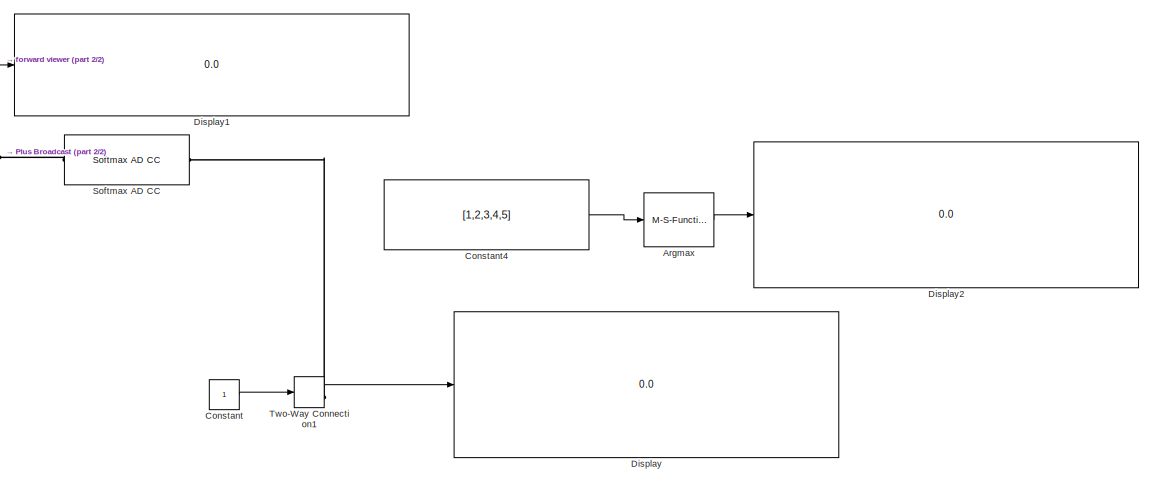
[diagram: root canvas - part 1/2, right side, full height]
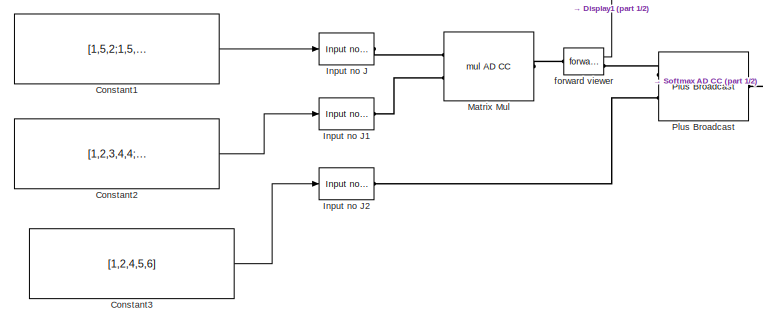
[diagram: root canvas - part 2/2, middle left region]
MODEL slx_4d7b61004dfd
KIND model
CONFIG AbsTol = auto
CONFIG EnableMultiTasking = off
CONFIG FixedStep = auto
CONFIG MaxStep = auto
CONFIG MinStep = auto
CONFIG RelTol = 1e-3
CONFIG SampleTimeConstraint = Unconstrained
CONFIG Solver = VariableStepAuto
CONFIG SolverName = VariableStepAuto
CONFIG StartTime = 0.0
CONFIG StopTime = 10.0
BLOCK [M-S-Function] Argmax 
  FunctionName = sfun_argmax
  Ports = [1, 1]
BLOCK [Constant] Constant
BLOCK [Constant] Constant1
  Value = [1,5,2;1,5,2]
  VectorParams1D = off
BLOCK [Constant] Constant2
  Value = [1,2,3,4,4;1,2,3,3,3;1,2,3,4,5]
  VectorParams1D = off
BLOCK [Constant] Constant3
  Value = [1,2,4,5,6]
  VectorParams1D = off
BLOCK [Constant] Constant4
  Value = [1,2,3,4,5]
  VectorParams1D = off
BLOCK [Display] Display
  Decimation = 1
  Ports = [1]
BLOCK [Display] Display1
  Decimation = 1
  Ports = [1]
BLOCK [Display] Display2
  Decimation = 1
  Ports = [1]
BLOCK [Reference] Input no J  REF=ad_blocks/Input no J  (lib defined in slx_3af8d3de87d3)
  Ports = [1, 0, 0, 0, 0, 0, 1]
  SourceBlock = ad_blocks/Input no J
BLOCK [Reference] Input no J1  REF=ad_blocks/Input no J  (lib defined in slx_3af8d3de87d3)
  Ports = [1, 0, 0, 0, 0, 0, 1]
  SourceBlock = ad_blocks/Input no J
BLOCK [Reference] Input no J2  REF=ad_blocks/Input no J  (lib defined in slx_3af8d3de87d3)
  Ports = [1, 0, 0, 0, 0, 0, 1]
  SourceBlock = ad_blocks/Input no J
BLOCK [Reference] Matrix Mul  REF=ad_blocks/mul AD CC  (lib defined in slx_3af8d3de87d3)
  Ports = [0, 0, 0, 0, 0, 2, 1]
  SourceBlock = ad_blocks/mul AD CC
  SourceType = SubSystem
BLOCK [Reference] Plus Broadcast  REF=ad_blocks/Plus Broadcast  (lib defined in slx_3af8d3de87d3)
  Ports = [0, 0, 0, 0, 0, 2, 1]
  SourceBlock = ad_blocks/Plus Broadcast
  SourceType = SubSystem
BLOCK [Reference] Softmax AD CC  REF=ad_blocks/Softmax AD CC  (lib defined in slx_3af8d3de87d3)
  Ports = [0, 0, 0, 0, 0, 1, 1]
  SourceBlock = ad_blocks/Softmax AD CC
BLOCK [TwoWayConnection] Two-Way Connection1
  Ports = [1, 1, 0, 0, 0, 0, 1]
BLOCK [Reference] forward viewer  REF=ad_blocks/forward viewer  (lib defined in slx_3af8d3de87d3)
  Ports = [0, 1, 0, 0, 0, 1, 1]
  SourceBlock = ad_blocks/forward viewer
LINE Argmax :1 -> Display2:1
LINE Constant1:1 -> Input no J:1
LINE Constant2:1 -> Input no J1:1
LINE Constant3:1 -> Input no J2:1
LINE Constant4:1 -> Argmax :1
LINE Constant:1 -> Two-Way Connection1:1
LINE Two-Way Connection1:1 -> Display:1
LINE forward viewer:1 -> Display1:1
PLINE Input no J1:RConn1 -- Matrix Mul:LConn2
PLINE Input no J2:RConn1 -- Plus Broadcast:LConn2
PLINE Input no J:RConn1 -- Matrix Mul:LConn1
PLINE Matrix Mul:RConn1 -- forward viewer:LConn1
PLINE Plus Broadcast:LConn1 -- forward viewer:RConn1
PLINE Plus Broadcast:RConn1 -- Softmax AD CC:LConn1
PLINE Softmax AD CC:RConn1 -- Two-Way Connection1:RConn1
